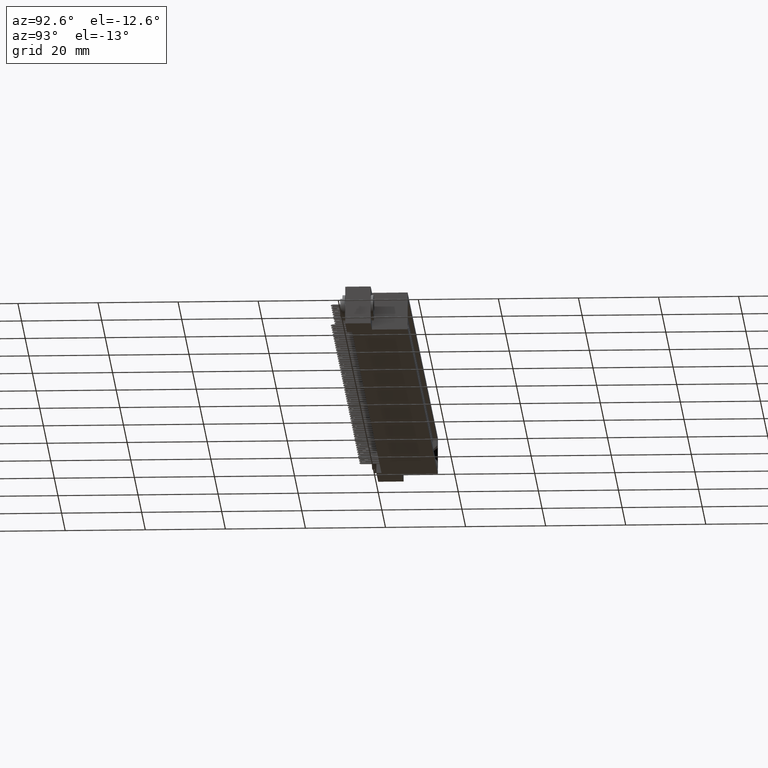
[diagram: clean part render]
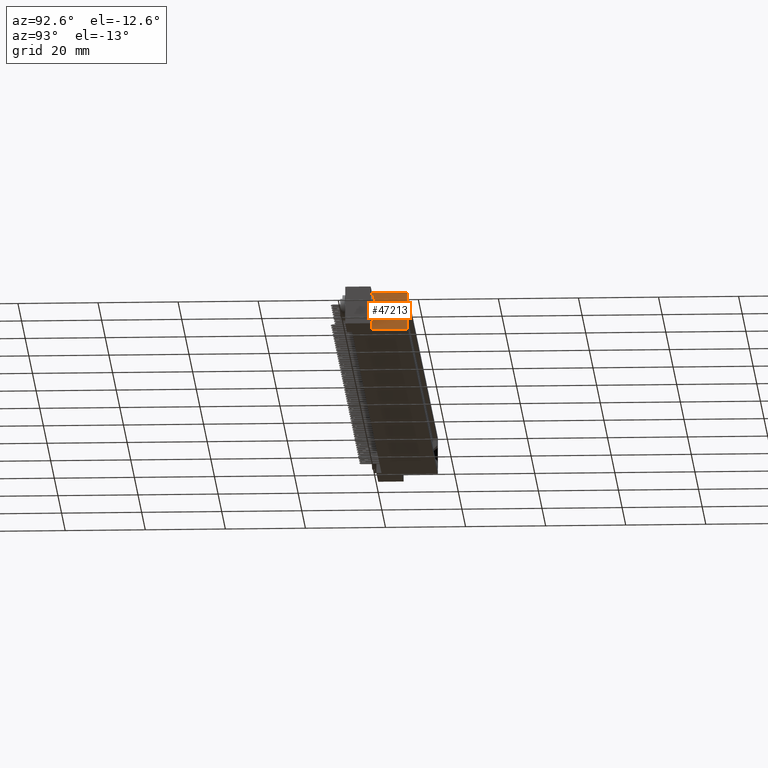
[diagram: same view with one face highlighted and labeled with its STEP entity id]
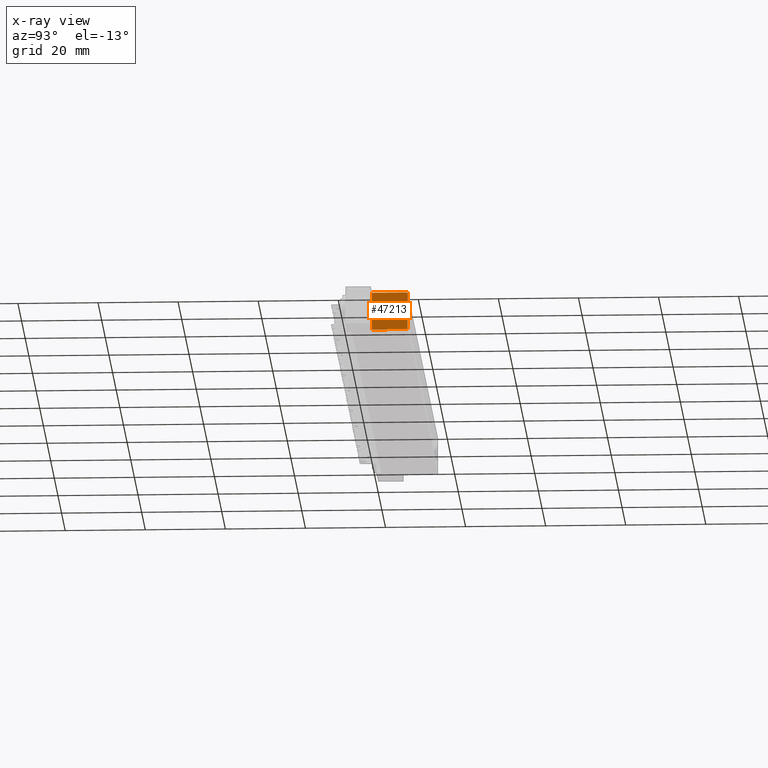
[diagram: x-ray of the same camera — body ghosted, the highlighted face saturated]
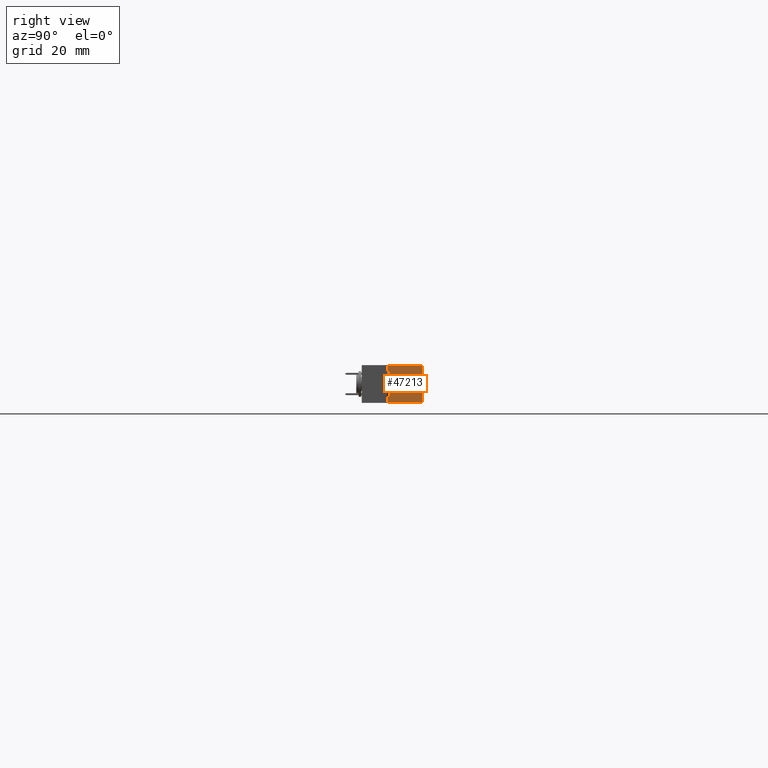
[diagram: same view with one face highlighted and labeled with its STEP entity id]
A machine part, auxiliary view. The second image highlights one B-rep face of the part: STEP entity #47213.
The next image is the same camera in x-ray: the body ghosted, the highlighted face saturated — about 0% of this face is hidden behind the body in this view.
A second angle (right view) of the same face is appended — the face is thin or edge-on in the first view.
In plain terms, the highlighted planar face has unit normal (-1, 0, -0).
Its self-contained STEP definition (entity closure, byte-faithful):
#1613 = VERTEX_POINT ( 'NONE', #28779 ) ;
#3528 = VERTEX_POINT ( 'NONE', #14143 ) ;
#7342 = CARTESIAN_POINT ( 'NONE',  ( 6.847499999999999300, 0.2500000000000000000, 0.0000000000000000000 ) ) ;
#8534 = CARTESIAN_POINT ( 'NONE',  ( 6.847499999999999300, 0.2500000000000000000, 0.0000000000000000000 ) ) ;
#8714 = LINE ( 'NONE', #7342, #9864 ) ;
#9362 = CARTESIAN_POINT ( 'NONE',  ( 6.847499999999999300, 0.2500000000000000000, 0.0000000000000000000 ) ) ;
#9864 = VECTOR ( 'NONE', #22221, 39.37007874015748100 ) ;
#10028 = ORIENTED_EDGE ( 'NONE', *, *, #19735, .T. ) ;
#14143 = CARTESIAN_POINT ( 'NONE',  ( 6.847499999999999300, 0.2500000000000000000, 0.0000000000000000000 ) ) ;
#14458 = DIRECTION ( 'NONE',  ( -1.000000000000000000, 0.0000000000000000000, -2.953349182339752700E-015 ) ) ;
#15355 = PLANE ( 'NONE',  #18098 ) ;
#17334 = EDGE_LOOP ( 'NONE', ( #34032, #25383, #20228, #10028 ) ) ;
#18098 = AXIS2_PLACEMENT_3D ( 'NONE', #9362, #14458, #42277 ) ;
#18114 = DIRECTION ( 'NONE',  ( -2.953349182339752700E-015, -0.0000000000000000000, 1.000000000000000000 ) ) ;
#19188 = VECTOR ( 'NONE', #18114, 39.37007874015748100 ) ;
#19735 = EDGE_CURVE ( 'NONE', #27493, #1613, #31000, .T. ) ;
#20129 = VECTOR ( 'NONE', #36300, 39.37007874015748100 ) ;
#20228 = ORIENTED_EDGE ( 'NONE', *, *, #22481, .F. ) ;
#21902 = CARTESIAN_POINT ( 'NONE',  ( 6.847500000000001000, 0.2500000000000000000, -0.3699999999999989400 ) ) ;
#22197 = EDGE_CURVE ( 'NONE', #1613, #43274, #39784, .T. ) ;
#22221 = DIRECTION ( 'NONE',  ( -0.0000000000000000000, 1.000000000000000000, -0.0000000000000000000 ) ) ;
#22481 = EDGE_CURVE ( 'NONE', #27493, #3528, #34015, .T. ) ;
#22521 = FACE_OUTER_BOUND ( 'NONE', #17334, .T. ) ;
#23348 = CARTESIAN_POINT ( 'NONE',  ( 6.847500000000001000, 0.2500000000000000000, -0.3699999999999989400 ) ) ;
#23437 = EDGE_CURVE ( 'NONE', #3528, #43274, #8714, .T. ) ;
#24544 = CARTESIAN_POINT ( 'NONE',  ( 6.847499999999999300, 0.5999999999999999800, 0.0000000000000000000 ) ) ;
#25383 = ORIENTED_EDGE ( 'NONE', *, *, #23437, .F. ) ;
#27170 = VECTOR ( 'NONE', #34124, 39.37007874015748100 ) ;
#27493 = VERTEX_POINT ( 'NONE', #23348 ) ;
#28779 = CARTESIAN_POINT ( 'NONE',  ( 6.847500000000001000, 0.5999999999999999800, -0.3699999999999989400 ) ) ;
#31000 = LINE ( 'NONE', #21902, #20129 ) ;
#34015 = LINE ( 'NONE', #8534, #27170 ) ;
#34032 = ORIENTED_EDGE ( 'NONE', *, *, #22197, .T. ) ;
#34124 = DIRECTION ( 'NONE',  ( -2.953349182339752700E-015, -0.0000000000000000000, 1.000000000000000000 ) ) ;
#36300 = DIRECTION ( 'NONE',  ( -0.0000000000000000000, 1.000000000000000000, -0.0000000000000000000 ) ) ;
#39784 = LINE ( 'NONE', #47188, #19188 ) ;
#42277 = DIRECTION ( 'NONE',  ( -2.953349182339752700E-015, 0.0000000000000000000, 1.000000000000000000 ) ) ;
#43274 = VERTEX_POINT ( 'NONE', #24544 ) ;
#47188 = CARTESIAN_POINT ( 'NONE',  ( 6.847499999999999300, 0.5999999999999999800, 0.0000000000000000000 ) ) ;
#47213 = ADVANCED_FACE ( 'NONE', ( #22521 ), #15355, .F. ) ;